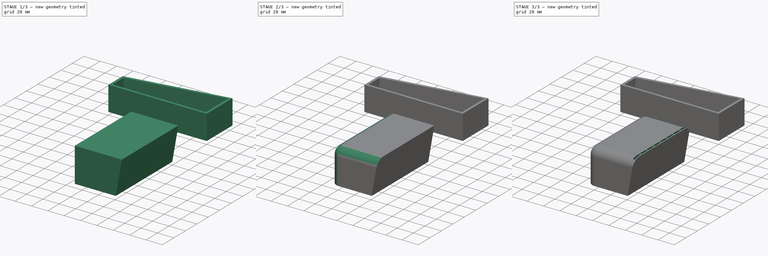
[diagram: build sequence overview — one tinted view per stage of 3, left to right]
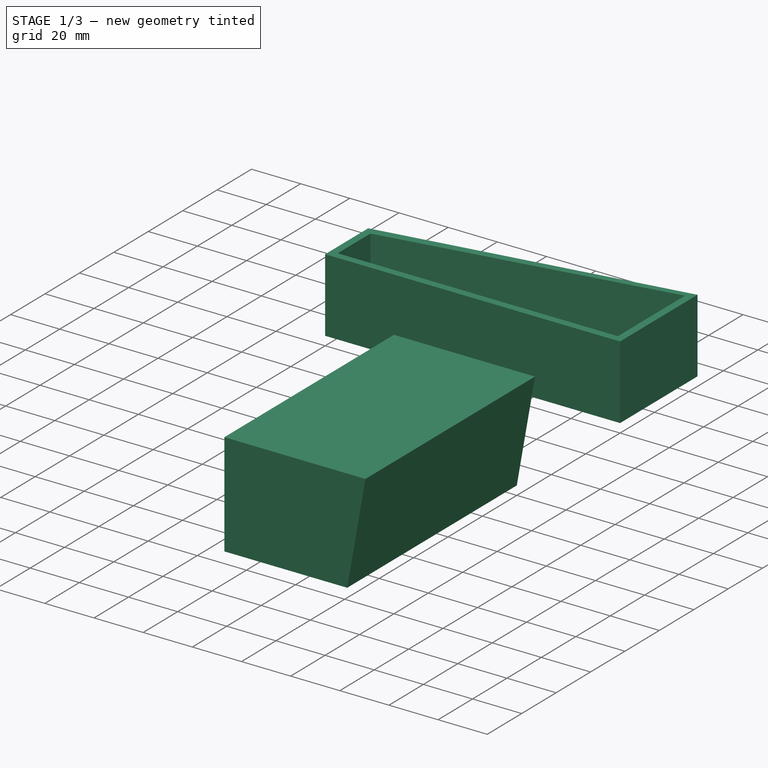
[diagram: stage 1 of 3 — iso view after this stage's code; geometry added in this stage tinted green]
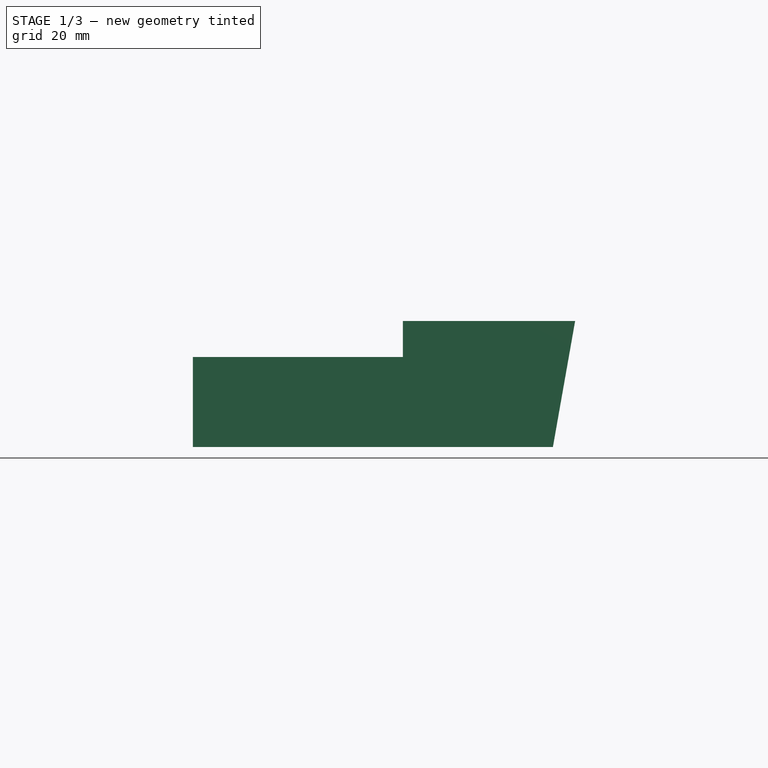
[diagram: stage 1 of 3 — front view after this stage's code; geometry added in this stage tinted green]
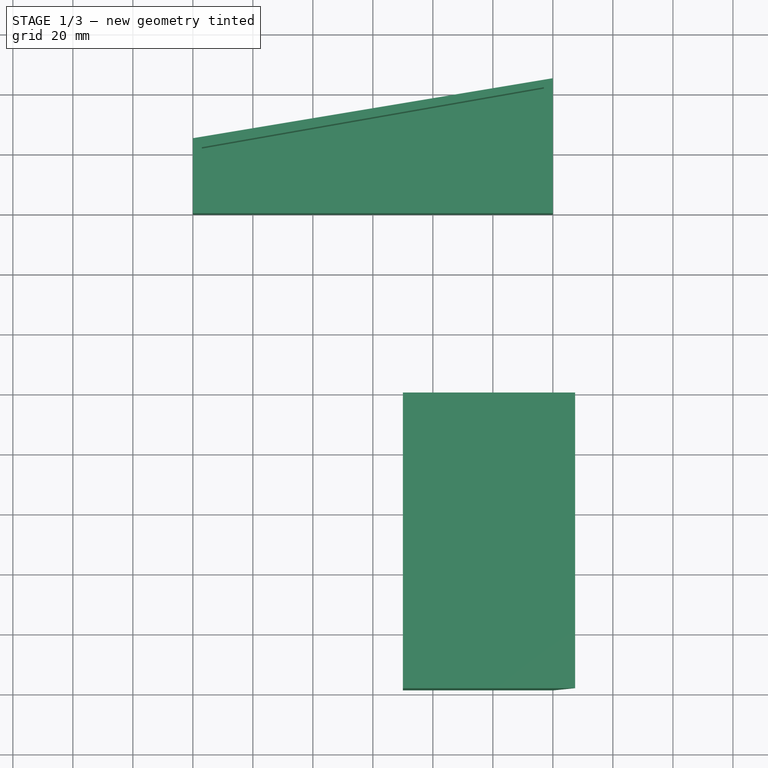
[diagram: stage 1 of 3 — top view after this stage's code; geometry added in this stage tinted green]
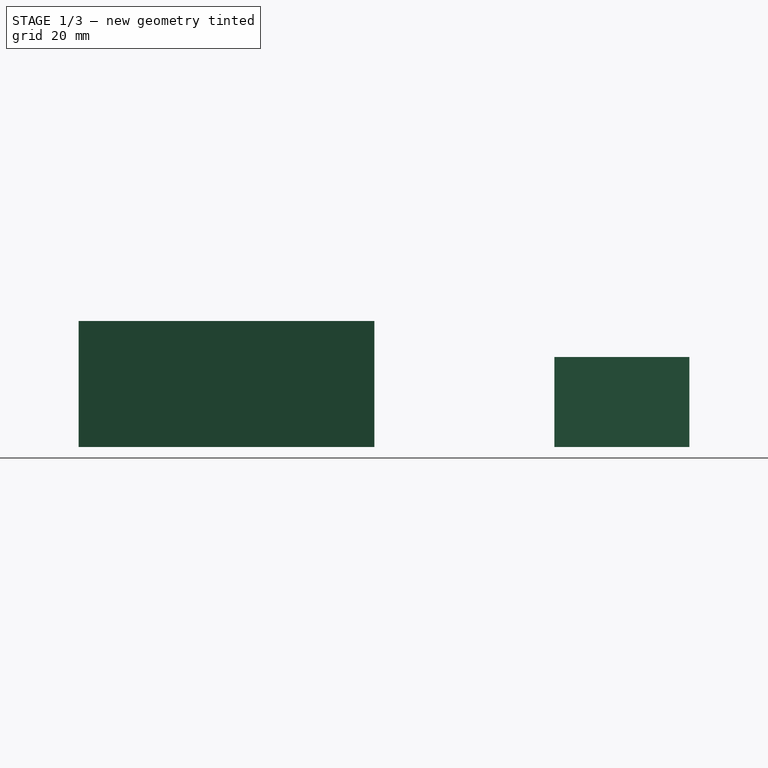
[diagram: stage 1 of 3 — right view after this stage's code; geometry added in this stage tinted green]
FCSTD DOCUMENT  (FreeCAD 0.20R29603 (Git))
Label: Knife Sharpener
License: All rights reserved
LicenseURL: http://en.wikipedia.org/wiki/All_rights_reserved
objects: Sketcher::SketchObject×4, PartDesign::Fillet×3, PartDesign::Pad×2, PartDesign::Pocket×2, PartDesign::Body×2, App::Part×2, Spreadsheet::Sheet×1, PartDesign::LinearPattern×1
note: 21 computed .brp shape members not serialized (recipe doc carries the construction recipe); baked Part::Feature solids carry a one-line shape summary decoded from their .brp

FEATURE [Sketcher::SketchObject] Sketch
  FullyConstrained = true
  MapMode = 5
  Placement = pos=(0,0,0) rot=(1,0,0;1.5708rad)
  Support = -> [XZ_Plane001]
  expr: Constraints[10] = Spreadsheet.angle + 90
  expr: Constraints[1] = Spreadsheet.bottom_depth
  expr: Constraints[8] = Spreadsheet.height
  sketch-geometry (4):
    g0: LineSegment StartX=0 StartY=0 StartZ=0 EndX=-50 EndY=0 EndZ=0
    g1: LineSegment StartX=-50 StartY=0 StartZ=0 EndX=-50 EndY=42 EndZ=0
    g2: LineSegment StartX=-50 StartY=42 StartZ=0 EndX=7.40573 EndY=42 EndZ=0
    g3: LineSegment StartX=7.40573 StartY=42 StartZ=0 EndX=0 EndY=0 EndZ=0
  constraints (11):
    c: Coincident(g0,g-1)
    c: DistanceX(g0,g0) = 50
    c: Coincident(g1,g0)
    c: Vertical(g1)
    c: Coincident(g2,g1)
    c: Horizontal(g2)
    c: Coincident(g3,g2)
    c: Coincident(g3,g0)
    c: DistanceY(g1,g1) = 42
    c: Horizontal(g0)
    c: Angle(g3,g0) = 1.74533
FEATURE [Spreadsheet::Sheet] Spreadsheet
  cells = A1=bottom_depth; B1(bottom_depth)=50; A2=height; B2(height)=42; A3=width; B3(width)==magnet_slots * (magnets_in_between_distance + magnets_width) + 2 * magnets_side_distance; A4=angle; B4(angle)=10; A5=round_edge_radius; B5(round_edge_radius)=10; A7=magnets_side_distance; B7(magnets_side_distance)=4; A8=magnets_knife_distance; B8(magnets_knife_distance)=1; A9=magnets_thickness; B9(magnets_thickness)=2.32; A10=magnets_width; B10(magnets_width)=10.32; A11=magnet_slots; B11(magnet_slots)=8; A12=magnet_slots_occurrences_length; B12(magnet_slots_occurrences_length)==width - (magnets_side_distance * 2 + magnets_width); A13=magnets_in_between_distance; B13(magnets_in_between_distance)=1; A15=holder_length; B15(holder_length)=120; A16=holder_width; B16(holder_width)=30; A17=holder_height_1; B17(holder_height_1)=45; A18=holder_height_2; B18(holder_height_2)=25; A19=holder_edge_thickness; B19(holder_edge_thickness)=3; A21=part_distance; B21(part_distance)=60
FEATURE [PartDesign::Pad] Pad
  Direction = (0,-1,-2e-16)
  Length = 98.56
  Length2 = 10
  Placement = pos=(0,0,0) rot=(1,0,0;1.5708rad)
  Profile = -> Sketch
  ReferenceAxis = -> Sketch [N_Axis]
  Type = 0
  expr: Length = Spreadsheet.width
FEATURE [PartDesign::Body] Body
  Group = -> [Sketch,Pad,Fillet,Fillet001,Fillet002,Sketch001,Pocket,LinearPattern]
  Origin = -> Origin001
  Tip = -> LinearPattern
FEATURE [App::Part] Part  label="Block"
  Group = -> [Body]
  Origin = -> Origin
FEATURE [Sketcher::SketchObject] Sketch002
  FullyConstrained = true
  MapMode = 5
  Support = -> [XY_Plane003]
  expr: Constraints[10] = Spreadsheet.holder_height_2
  expr: Constraints[11] = Spreadsheet.holder_height_1
  expr: Constraints[1] = Spreadsheet.holder_length
  sketch-geometry (4):
    g0: LineSegment StartX=0 StartY=60 StartZ=0 EndX=-120 EndY=60 EndZ=0
    g1: LineSegment StartX=-120 StartY=60 StartZ=0 EndX=-120 EndY=85 EndZ=0
    g2: LineSegment StartX=0 StartY=60 StartZ=0 EndX=0 EndY=105 EndZ=0
    g3: LineSegment StartX=-120 StartY=85 StartZ=0 EndX=0 EndY=105 EndZ=0
  constraints (12):
    c: DistanceY(g-1,g0) = 60
    c: DistanceX(g0,g-1) = 120
    c: Vertical(g-1,g0)
    c: Horizontal(g0)
    c: Coincident(g1,g0)
    c: Vertical(g1)
    c: Coincident(g2,g0)
    c: Vertical(g2)
    c: Coincident(g3,g1)
    c: Coincident(g3,g2)
    c: DistanceY(g0,g1) = 25
    c: DistanceY(g0,g2) = 45
FEATURE [PartDesign::Pad] Pad001
  Direction = (0,0,1)
  Length = 30
  Length2 = 10
  Profile = -> Sketch002
  ReferenceAxis = -> Sketch002 [N_Axis]
  Type = 0
  expr: Length = Spreadsheet.holder_width
FEATURE [Sketcher::SketchObject] Sketch004
  FullyConstrained = true
  MapMode = 5
  Placement = pos=(0,0,30) rot=(0,0,1;0rad)
  Support = -> [Pad001]
  expr: Constraints[10] = Spreadsheet.part_distance + Spreadsheet.holder_height_1 - Spreadsheet.holder_edge_thickness
  expr: Constraints[11] = Spreadsheet.part_distance + Spreadsheet.holder_height_2 - Spreadsheet.holder_edge_thickness
  expr: Constraints[7] = Spreadsheet.part_distance + Spreadsheet.holder_edge_thickness
  expr: Constraints[8] = Spreadsheet.holder_edge_thickness
  expr: Constraints[9] = Spreadsheet.holder_length - Spreadsheet.holder_edge_thickness
  sketch-geometry (4):
    g0: LineSegment StartX=-3 StartY=63 StartZ=0 EndX=-117 EndY=63 EndZ=0
    g1: LineSegment StartX=-117 StartY=63 StartZ=0 EndX=-117 EndY=82 EndZ=0
    g2: LineSegment StartX=-117 StartY=82 StartZ=0 EndX=-3 EndY=102 EndZ=0
    g3: LineSegment StartX=-3 StartY=102 StartZ=0 EndX=-3 EndY=63 EndZ=0
  constraints (12):
    c: Horizontal(g0)
    c: Coincident(g1,g0)
    c: Vertical(g1)
    c: Coincident(g2,g1)
    c: Coincident(g3,g2)
    c: Coincident(g3,g0)
    c: Vertical(g3)
    c: DistanceY(g-1,g0) = 63
    c: DistanceX(g0,g-1) = 3
    c: DistanceX(g0,g-1) = 117
    c: DistanceY(g-1,g2) = 102
    c: DistanceY(g-1,g1) = 82
FEATURE [PartDesign::Pocket] Pocket001
  BaseFeature = -> Pad001
  Direction = (0,0,-1)
  Length = 27
  Length2 = 5
  Profile = -> Sketch004
  ReferenceAxis = -> Sketch004 [N_Axis]
  Type = 0
  expr: Length = Spreadsheet.holder_width - Spreadsheet.holder_edge_thickness
FEATURE [PartDesign::Body] Body001
  Group = -> [Sketch002,Pad001,Sketch004,Pocket001]
  Origin = -> Origin003
  Tip = -> Pocket001
FEATURE [App::Part] Part001  label="Whetstone Holder"
  Group = -> [Body001]
  Origin = -> Origin002
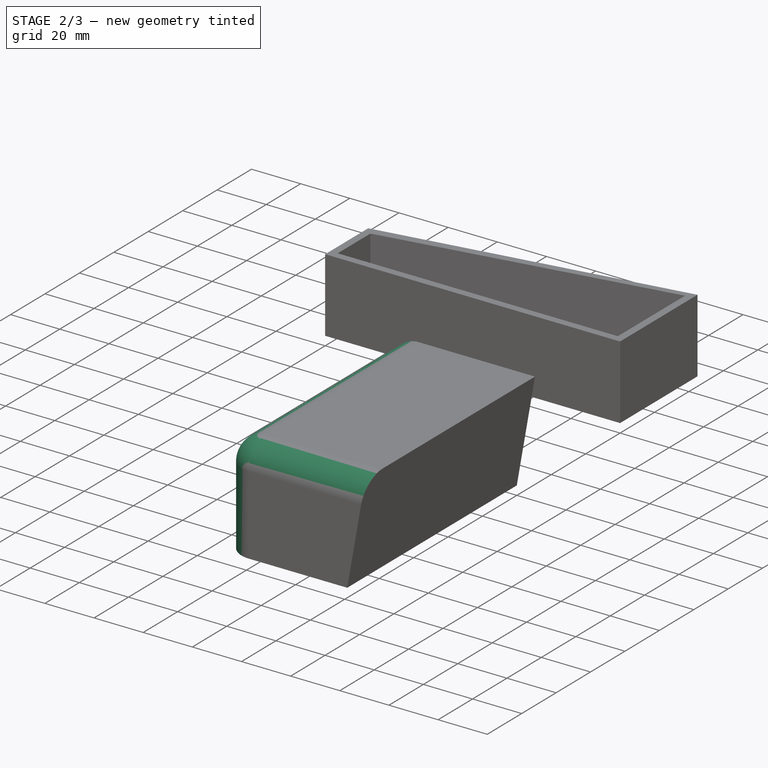
[diagram: stage 2 of 3 — iso view after this stage's code; geometry added in this stage tinted green]
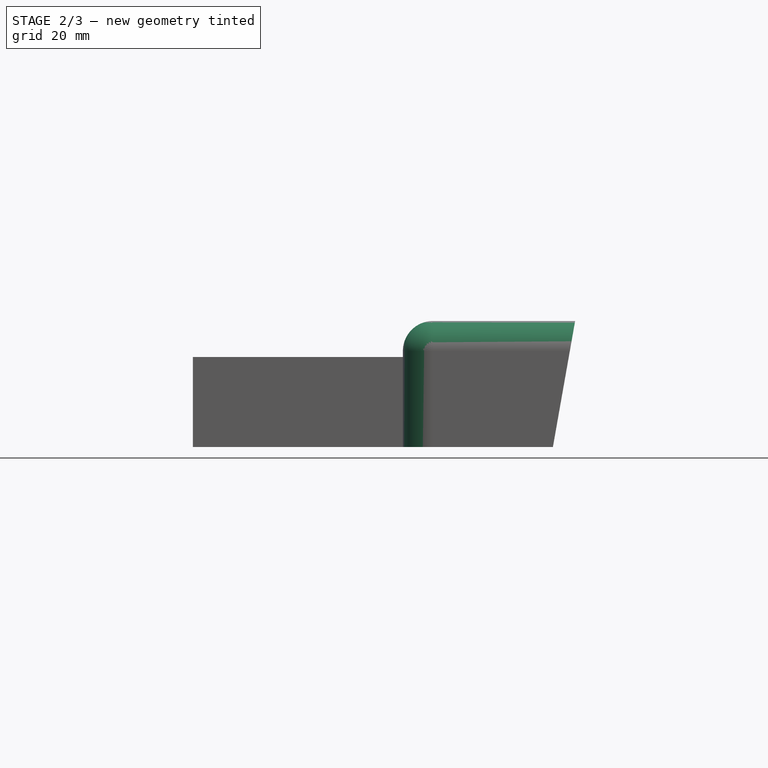
[diagram: stage 2 of 3 — front view after this stage's code; geometry added in this stage tinted green]
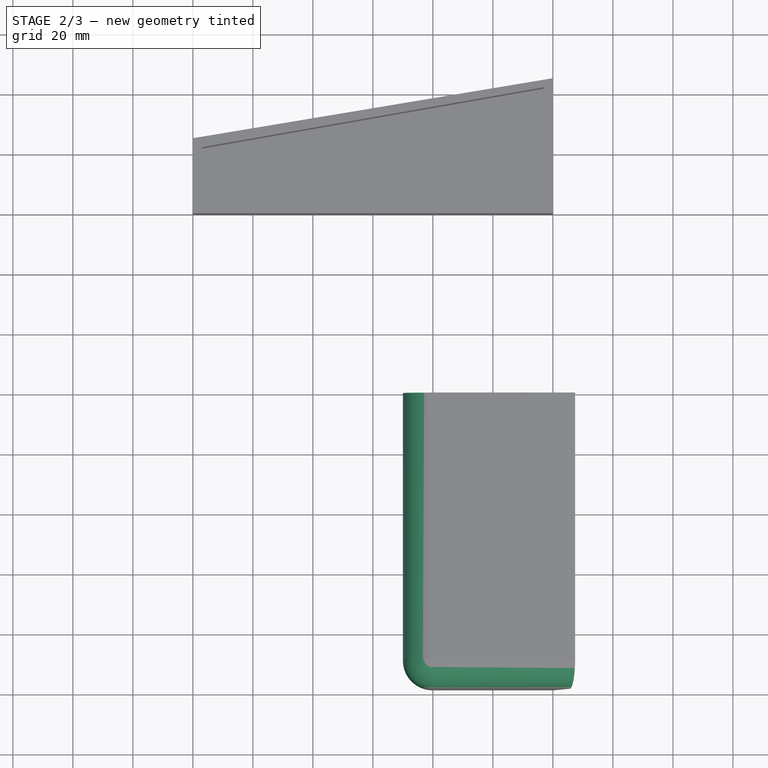
[diagram: stage 2 of 3 — top view after this stage's code; geometry added in this stage tinted green]
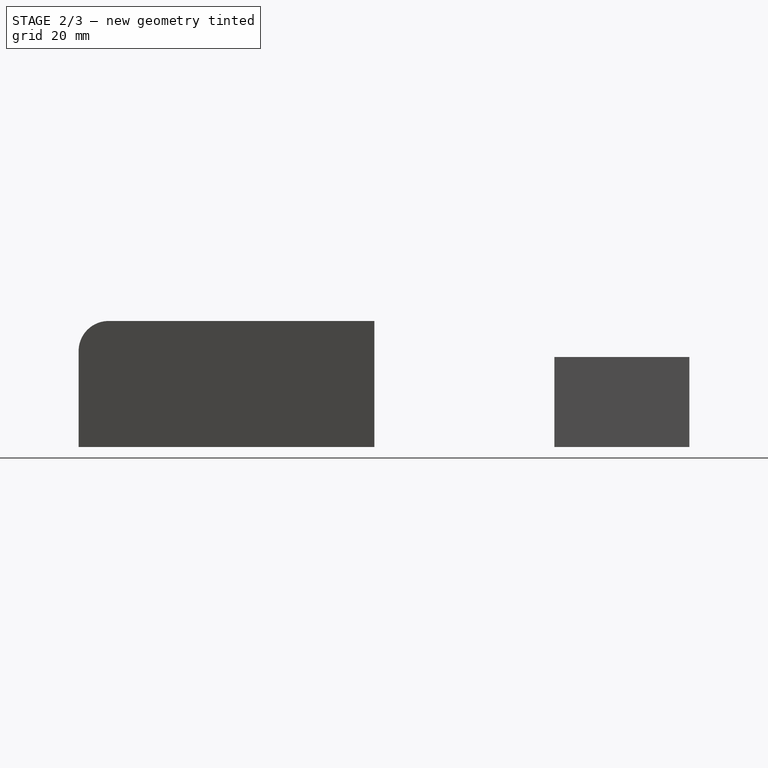
[diagram: stage 2 of 3 — right view after this stage's code; geometry added in this stage tinted green]
FEATURE [PartDesign::Fillet] Fillet
  Base = -> Pad [Edge10]
  BaseFeature = -> Pad
  Placement = pos=(0,0,0) rot=(1,0,0;1.5708rad)
  Radius = 10
  SupportTransform = false
  UseAllEdges = false
  expr: Radius = Spreadsheet.round_edge_radius
FEATURE [PartDesign::Fillet] Fillet001
  Base = -> Fillet [Edge1]
  BaseFeature = -> Fillet
  Placement = pos=(0,0,0) rot=(1,0,0;1.5708rad)
  Radius = 10
  SupportTransform = false
  UseAllEdges = false
  expr: Radius = Spreadsheet.round_edge_radius
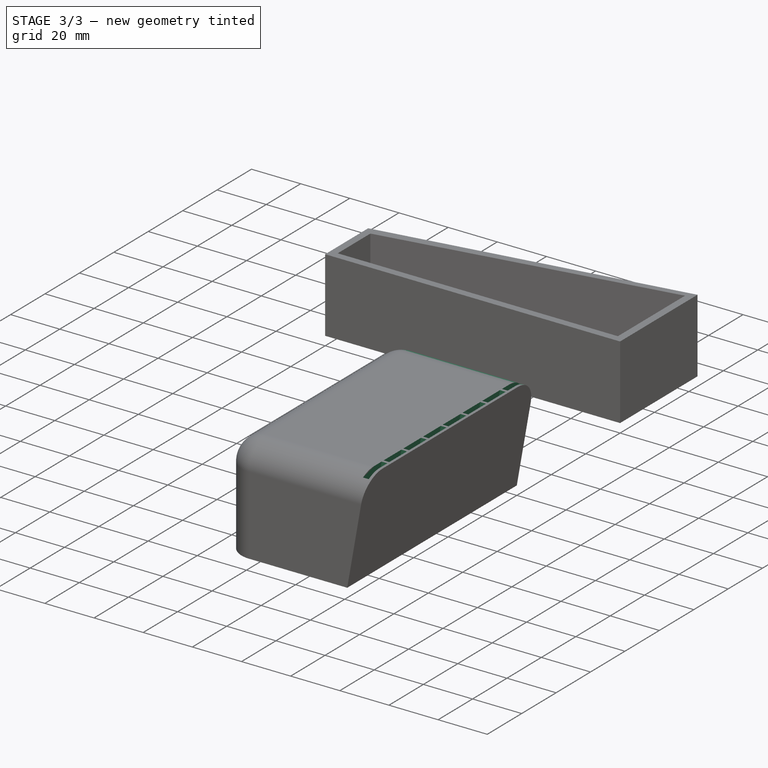
[diagram: stage 3 of 3 — iso view after this stage's code; geometry added in this stage tinted green]
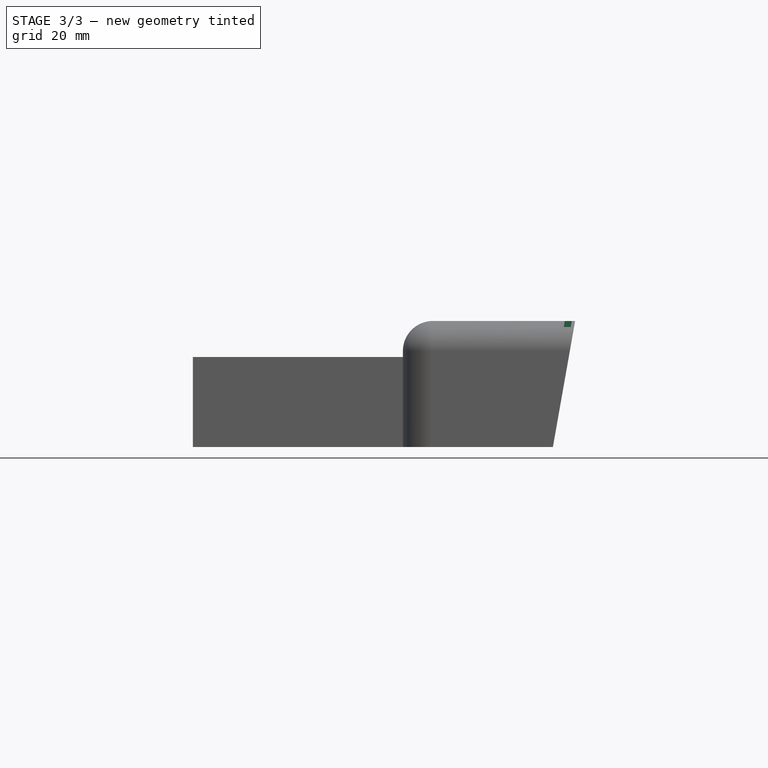
[diagram: stage 3 of 3 — front view after this stage's code; geometry added in this stage tinted green]
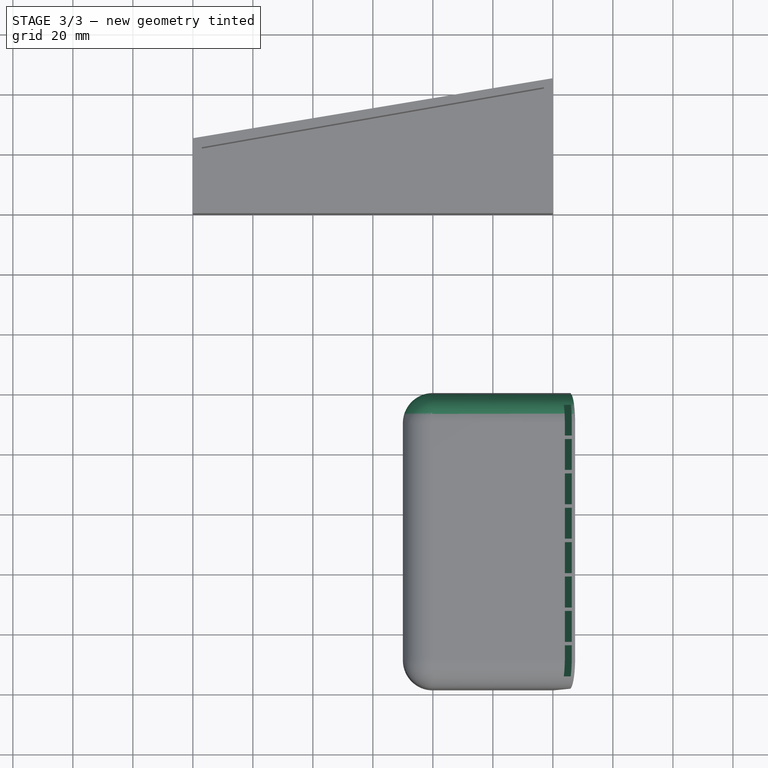
[diagram: stage 3 of 3 — top view after this stage's code; geometry added in this stage tinted green]
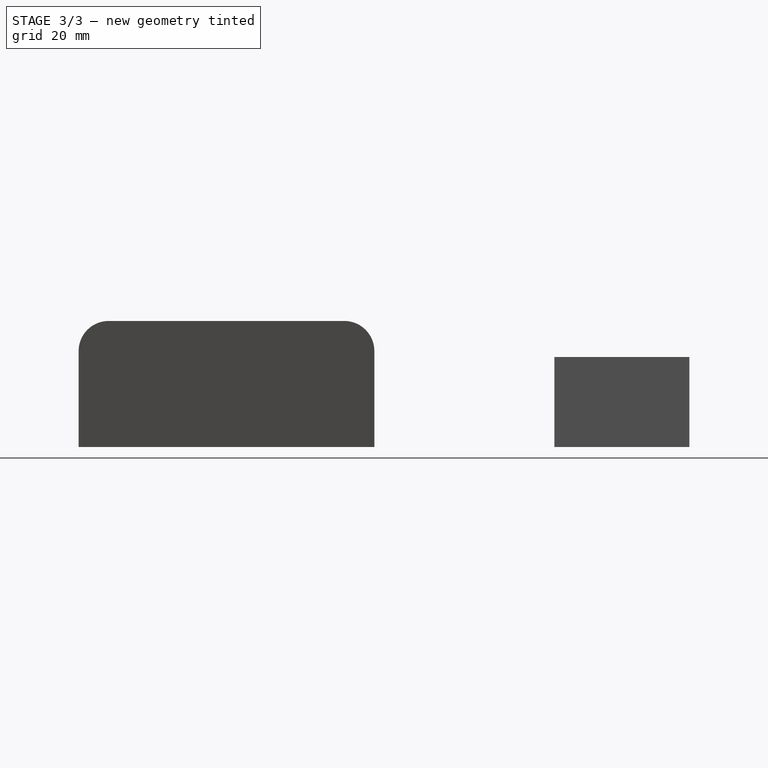
[diagram: stage 3 of 3 — right view after this stage's code; geometry added in this stage tinted green]
FEATURE [PartDesign::Fillet] Fillet002
  Base = -> Fillet001 [Edge7]
  BaseFeature = -> Fillet001
  Placement = pos=(0,0,0) rot=(1,0,0;1.5708rad)
  Radius = 10
  SupportTransform = false
  UseAllEdges = false
  expr: Radius = Spreadsheet.round_edge_radius
FEATURE [Sketcher::SketchObject] Sketch001
  FullyConstrained = true
  MapMode = 5
  Placement = pos=(0,0,0) rot=(1,0,0;3.14159rad)
  Support = -> [Fillet002]
  expr: Constraints[10] = Spreadsheet.magnets_side_distance
  expr: Constraints[11] = Spreadsheet.magnets_width
  expr: Constraints[8] = Spreadsheet.magnets_thickness
  expr: Constraints[9] = Spreadsheet.magnets_knife_distance
  sketch-geometry (4):
    g0: LineSegment StartX=-1 StartY=4 StartZ=0 EndX=-3.32 EndY=4 EndZ=0
    g1: LineSegment StartX=-3.32 StartY=4 StartZ=0 EndX=-3.32 EndY=14.32 EndZ=0
    g2: LineSegment StartX=-3.32 StartY=14.32 StartZ=0 EndX=-1 EndY=14.32 EndZ=0
    g3: LineSegment StartX=-1 StartY=14.32 StartZ=0 EndX=-1 EndY=4 EndZ=0
  constraints (12):
    c: Coincident(g0,g1)
    c: Coincident(g1,g2)
    c: Coincident(g2,g3)
    c: Coincident(g3,g0)
    c: Horizontal(g0)
    c: Horizontal(g2)
    c: Vertical(g1)
    c: Vertical(g3)
    c: DistanceX(g1,g2) = 2.32
    c: DistanceX(g0,g-1) = 1
    c: DistanceY(g-1,g0) = 4
    c: DistanceY(g1,g1) = 10.32
FEATURE [PartDesign::Pocket] Pocket
  BaseFeature = -> Fillet002
  Direction = (0.173648,0,1)
  Length = 5
  Length2 = 5
  Placement = pos=(0,0,0) rot=(1,0,0;1.5708rad)
  Profile = -> Sketch001
  ReferenceAxis = -> Sketch001 [N_Axis]
  Type = 1
  UseCustomVector = true
  expr: .Direction.x = sin(Spreadsheet.angle)
FEATURE [PartDesign::LinearPattern] LinearPattern
  BaseFeature = -> Pocket
  Direction = -> Sketch001 [V_Axis]
  Length = 80.24
  Occurrences = 8
  Originals = -> [Pocket]
  Placement = pos=(0,0,0) rot=(1,0,0;1.5708rad)
  expr: Length = Spreadsheet.magnet_slots_occurrences_length
  expr: Occurrences = Spreadsheet.magnet_slots
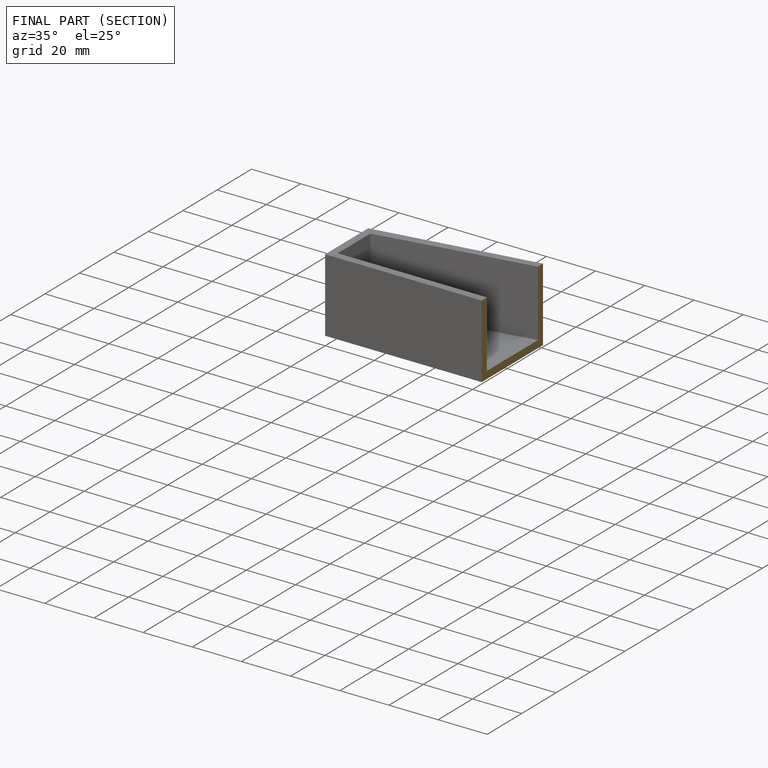
[diagram: finished part — half-section view (interior)]
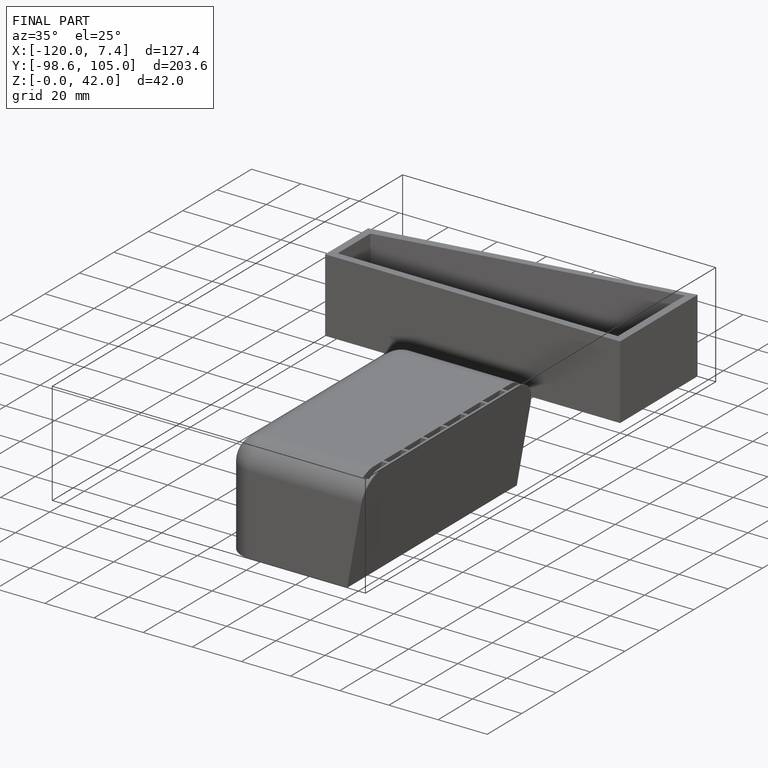
[diagram: finished part — iso view with bounding-box wireframe]
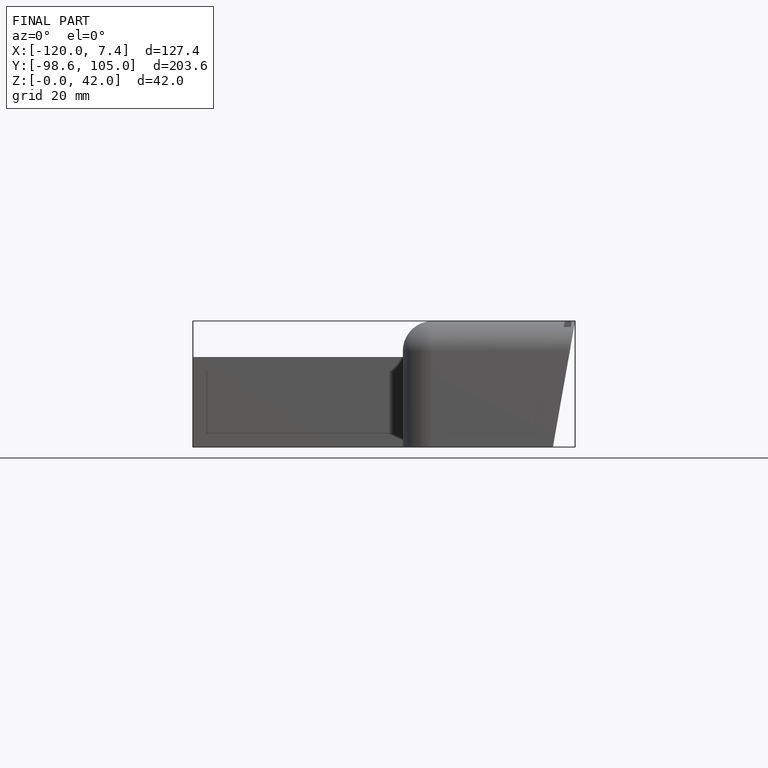
[diagram: finished part — front view with bounding-box wireframe]
